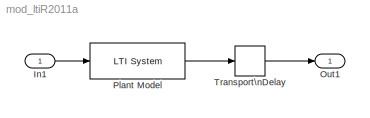
MODEL mod_ltiR2011a
KIND model
BLOCK [Inport] In1
  IconDisplay = Port number
  SID = 2
BLOCK [Outport] Out1
  IconDisplay = Port number
  SID = 1
BLOCK [Reference] Plant Model  REF=cstblocks/LTI System
  IC = []
  Ports = [1, 1]
  SID = 19
  SourceBlock = cstblocks/LTI System
  SourceType = LTI Block
  sys = G
BLOCK [TransportDelay] Transport\nDelay
  DelayTime = tau
  Ports = [1, 1]
  SID = 20
LINE In1:1 -> Plant Model:1
LINE Plant Model:1 -> Transport\nDelay:1
LINE Transport\nDelay:1 -> Out1:1
